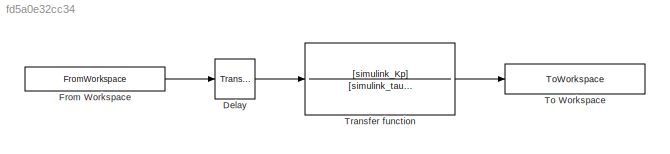
MODEL slx_fd5a0e32cc34
KIND model
CONFIG AbsTol = auto
CONFIG EnableMultiTasking = off
CONFIG FixedStep = auto
CONFIG MaxStep = auto
CONFIG MinStep = auto
CONFIG RelTol = 1e-3
CONFIG SampleTimeConstraint = Unconstrained
CONFIG SolverName = VariableStepAuto
CONFIG StartTime = 0.0
CONFIG StopTime = 18000
BLOCK [TransportDelay] Delay
  DelayTime = simulink_theta
  Ports = [1, 1]
BLOCK [FromWorkspace] From Workspace
  VariableName = simulink_feed
BLOCK [ToWorkspace] To Workspace
  FixptAsFi = on
  MaxDataPoints = inf
  Ports = [1]
  SampleTime = -1
  SaveFormat = Timeseries
  VariableName = transfer_function_results
BLOCK [TransferFcn] Transfer function
  Denominator = [simulink_tau 1]
  Numerator = [simulink_Kp]
LINE Delay:1 -> Transfer function:1
LINE From Workspace:1 -> Delay:1
LINE Transfer function:1 -> To Workspace:1
